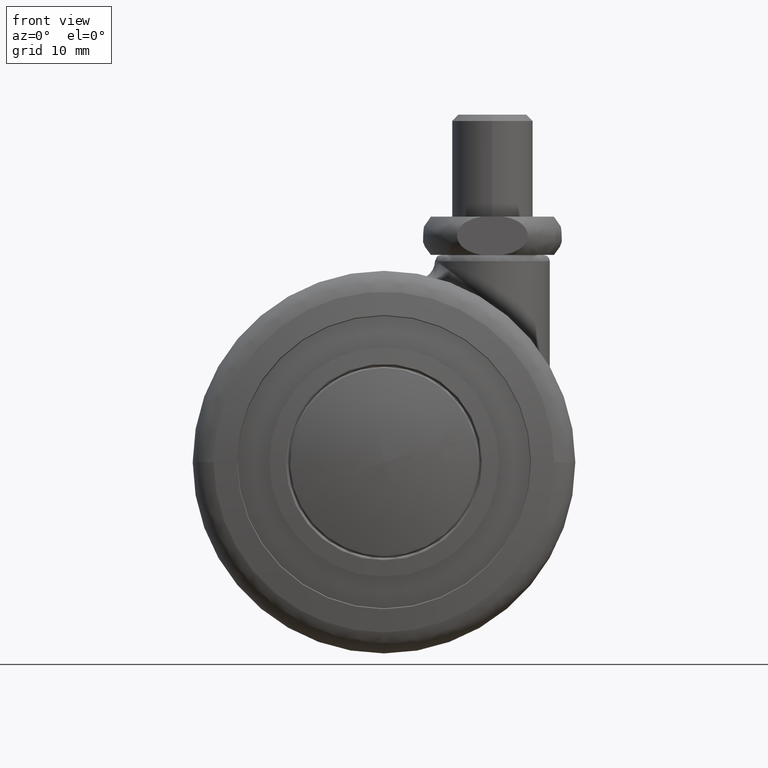
[diagram: clean part render]
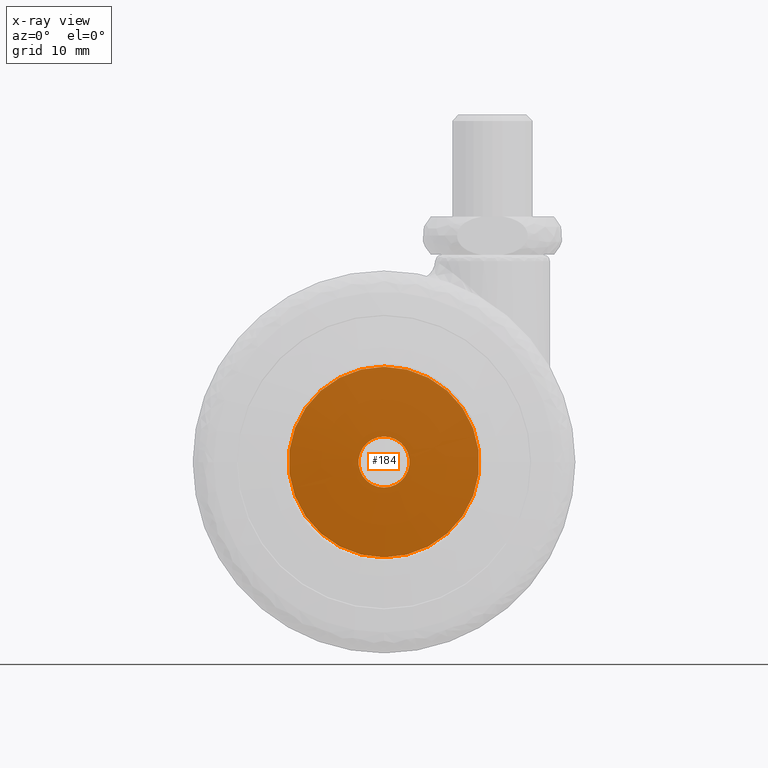
[diagram: x-ray — body ghosted, one internal face saturated and labeled with its STEP entity id]
A machine part, front view, then the same camera in x-ray: the body is ghosted and one INTERNAL B-rep face — a face not visible from any outside direction — is saturated and labeled: STEP entity #184.
In plain terms, the highlighted planar face has unit normal (0, -1, 0).
Its self-contained STEP definition (entity closure, byte-faithful):
#184=ADVANCED_FACE('',(#568,#569),#567,.T.);
#567=PLANE('',#2062);
#568=FACE_OUTER_BOUND('',#2063,.T.);
#569=FACE_BOUND('',#2064,.T.);
#2059=CARTESIAN_POINT('',(-3.10729914878E+01,2.00000000000E+01,3.43850000000E+01));
#2060=DIRECTION('',(0.00000000000E+00,-1.00000000000E+00,-0.00000000000E+00));
#2061=DIRECTION('',(0.00000000000E+00,0.00000000000E+00,-1.00000000000E+00));
#2062=AXIS2_PLACEMENT_3D('',#2059,#2060,#2061);
#2063=EDGE_LOOP('',(#4558,#4559));
#2064=EDGE_LOOP('',(#4560,#4561));
#4558=ORIENTED_EDGE('',*,*,#5211,.T.);
#4559=ORIENTED_EDGE('',*,*,#5212,.T.);
#4560=ORIENTED_EDGE('',*,*,#5213,.F.);
#4561=ORIENTED_EDGE('',*,*,#5214,.F.);
#5211=EDGE_CURVE('',#6250,#6251,#6252,.T.);
#5212=EDGE_CURVE('',#6251,#6250,#6258,.T.);
#5213=EDGE_CURVE('',#6264,#6265,#6266,.T.);
#5214=EDGE_CURVE('',#6265,#6264,#6272,.T.);
#6250=VERTEX_POINT('',#8555);
#6251=VERTEX_POINT('',#8556);
#6252=CIRCLE('',#8560,1.49500000000E+01);
#6258=CIRCLE('',#8564,1.49500000000E+01);
#6264=VERTEX_POINT('',#8565);
#6265=VERTEX_POINT('',#8566);
#6266=CIRCLE('',#8570,4.00000000000E+00);
#6272=CIRCLE('',#8574,4.00000000000E+00);
#8555=CARTESIAN_POINT('',(0.00000000000E+00,2.00000000000E+01,-1.49500000000E+01));
#8556=CARTESIAN_POINT('',(1.77635683940E-15,2.00000000000E+01,1.49500000000E+01));
#8557=CARTESIAN_POINT('',(0.00000000000E+00,2.00000000000E+01,0.00000000000E+00));
#8558=DIRECTION('',(0.00000000000E+00,-1.00000000000E+00,-0.00000000000E+00));
#8559=DIRECTION('',(-1.22460635382E-16,0.00000000000E+00,-1.00000000000E+00));
#8560=AXIS2_PLACEMENT_3D('',#8557,#8558,#8559);
#8561=CARTESIAN_POINT('',(0.00000000000E+00,2.00000000000E+01,0.00000000000E+00));
#8562=DIRECTION('',(0.00000000000E+00,-1.00000000000E+00,-0.00000000000E+00));
#8563=DIRECTION('',(-1.22460635382E-16,0.00000000000E+00,-1.00000000000E+00));
#8564=AXIS2_PLACEMENT_3D('',#8561,#8562,#8563);
#8565=CARTESIAN_POINT('',(4.44089209850E-16,2.00000000000E+01,4.00000000000E+00));
#8566=CARTESIAN_POINT('',(0.00000000000E+00,2.00000000000E+01,-4.00000000000E+00));
#8567=CARTESIAN_POINT('',(0.00000000000E+00,2.00000000000E+01,0.00000000000E+00));
#8568=DIRECTION('',(0.00000000000E+00,-1.00000000000E+00,-0.00000000000E+00));
#8569=DIRECTION('',(-1.22460635382E-16,0.00000000000E+00,-1.00000000000E+00));
#8570=AXIS2_PLACEMENT_3D('',#8567,#8568,#8569);
#8571=CARTESIAN_POINT('',(0.00000000000E+00,2.00000000000E+01,0.00000000000E+00));
#8572=DIRECTION('',(0.00000000000E+00,-1.00000000000E+00,-0.00000000000E+00));
#8573=DIRECTION('',(-1.22460635382E-16,0.00000000000E+00,-1.00000000000E+00));
#8574=AXIS2_PLACEMENT_3D('',#8571,#8572,#8573);